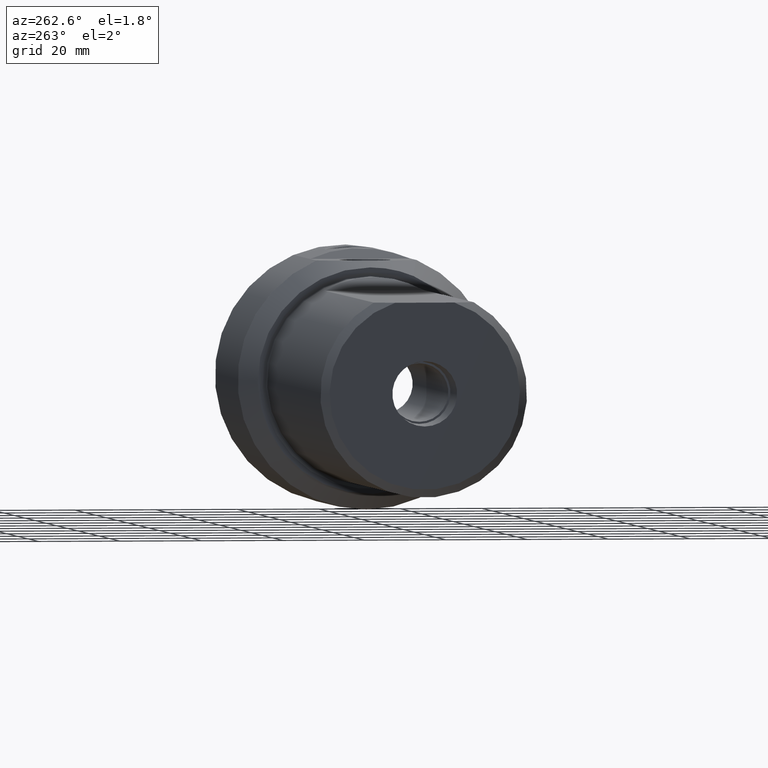
[diagram: clean part render]
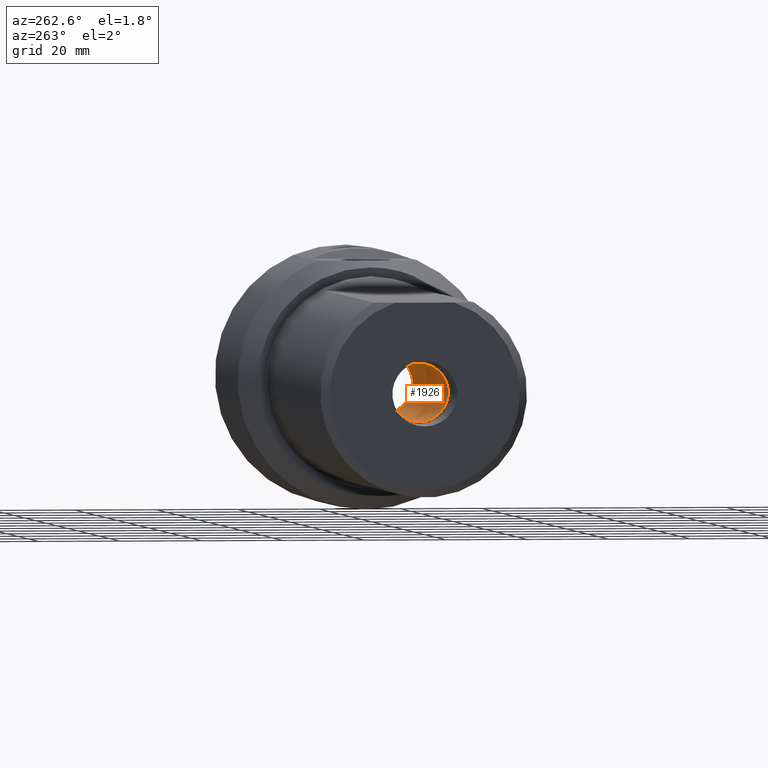
[diagram: same view with one face highlighted and labeled with its STEP entity id]
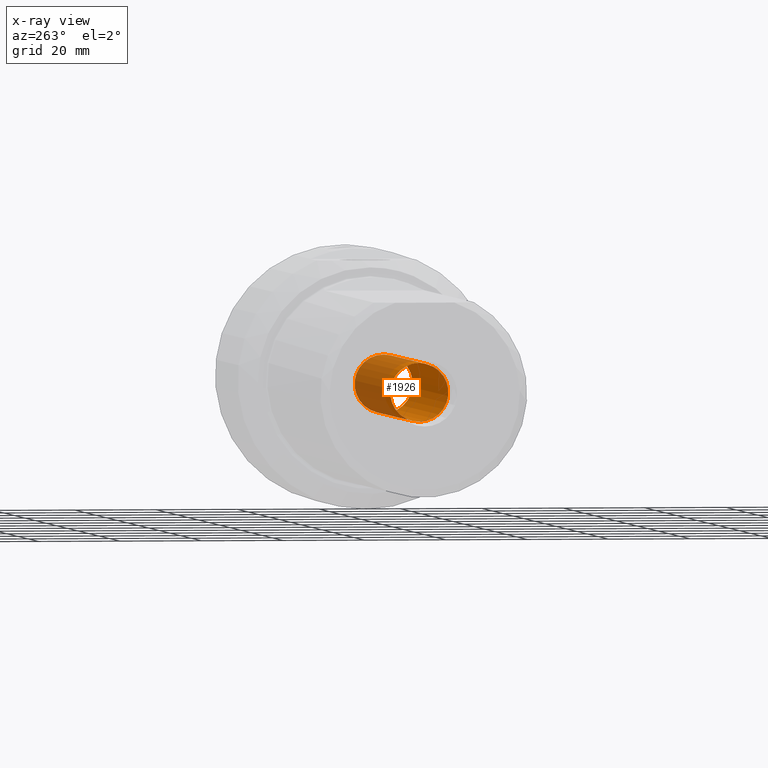
[diagram: x-ray of the same camera — body ghosted, the highlighted face saturated]
A machine part, auxiliary view. The second image highlights one B-rep face of the part: STEP entity #1926.
The next image is the same camera in x-ray: the body ghosted, the highlighted face saturated — about 43% of this face is hidden behind the body in this view.
In plain terms, the highlighted cylindrical surface (bore or boss wall) has radius 7.1374 mm, axis along (-1, -0, -0).
Its self-contained STEP definition (entity closure, byte-faithful):
#11 = ORIENTED_EDGE ( 'NONE', *, *, #16, .F. ) ;
#16 = EDGE_CURVE ( 'NONE', #1322, #1322, #619, .T. ) ;
#37 = DIRECTION ( 'NONE',  ( -1.000000000000000000, -0.0000000000000000000, -0.0000000000000000000 ) ) ;
#168 = FACE_OUTER_BOUND ( 'NONE', #1304, .T. ) ;
#204 = DIRECTION ( 'NONE',  ( -1.000000000000000000, -0.0000000000000000000, -0.0000000000000000000 ) ) ;
#530 = DIRECTION ( 'NONE',  ( 0.0000000000000000000, 0.0000000000000000000, -1.000000000000000000 ) ) ;
#619 = CIRCLE ( 'NONE', #2287, 7.137400000000009292 ) ;
#729 = CYLINDRICAL_SURFACE ( 'NONE', #2278, 7.137400000000009292 ) ;
#957 = CARTESIAN_POINT ( 'NONE',  ( 0.0000000000000000000, 0.0000000000000000000, 0.0000000000000000000 ) ) ;
#959 = CIRCLE ( 'NONE', #1663, 7.137400000000017286 ) ;
#1032 = CARTESIAN_POINT ( 'NONE',  ( 10.33019999999999960, 0.0000000000000000000, 0.0000000000000000000 ) ) ;
#1088 = CARTESIAN_POINT ( 'NONE',  ( 77.84651214265343810, 0.0000000000000000000, 0.0000000000000000000 ) ) ;
#1241 = VERTEX_POINT ( 'NONE', #1381 ) ;
#1298 = FACE_OUTER_BOUND ( 'NONE', #2341, .T. ) ;
#1304 = EDGE_LOOP ( 'NONE', ( #11 ) ) ;
#1322 = VERTEX_POINT ( 'NONE', #1374 ) ;
#1374 = CARTESIAN_POINT ( 'NONE',  ( 77.84651214265343810, 0.0000000000000000000, -7.137400000000009292 ) ) ;
#1381 = CARTESIAN_POINT ( 'NONE',  ( 10.33019999999999960, 0.0000000000000000000, 7.137400000000017286 ) ) ;
#1461 = DIRECTION ( 'NONE',  ( -1.000000000000000000, 0.0000000000000000000, 0.0000000000000000000 ) ) ;
#1663 = AXIS2_PLACEMENT_3D ( 'NONE', #1032, #204, #2232 ) ;
#1789 = ORIENTED_EDGE ( 'NONE', *, *, #1808, .T. ) ;
#1808 = EDGE_CURVE ( 'NONE', #1241, #1241, #959, .T. ) ;
#1926 = ADVANCED_FACE ( 'NONE', ( #1298, #168 ), #729, .F. ) ;
#2222 = DIRECTION ( 'NONE',  ( 0.0000000000000000000, 0.0000000000000000000, 1.000000000000000000 ) ) ;
#2232 = DIRECTION ( 'NONE',  ( 0.0000000000000000000, 0.0000000000000000000, 1.000000000000000000 ) ) ;
#2278 = AXIS2_PLACEMENT_3D ( 'NONE', #957, #37, #2222 ) ;
#2287 = AXIS2_PLACEMENT_3D ( 'NONE', #1088, #1461, #530 ) ;
#2341 = EDGE_LOOP ( 'NONE', ( #1789 ) ) ;